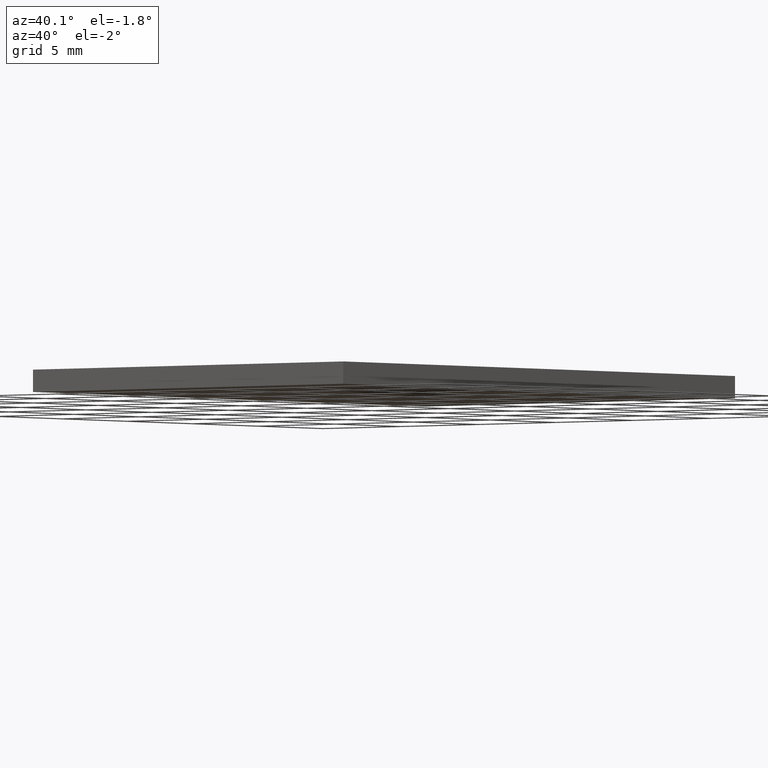
[diagram: clean part render]
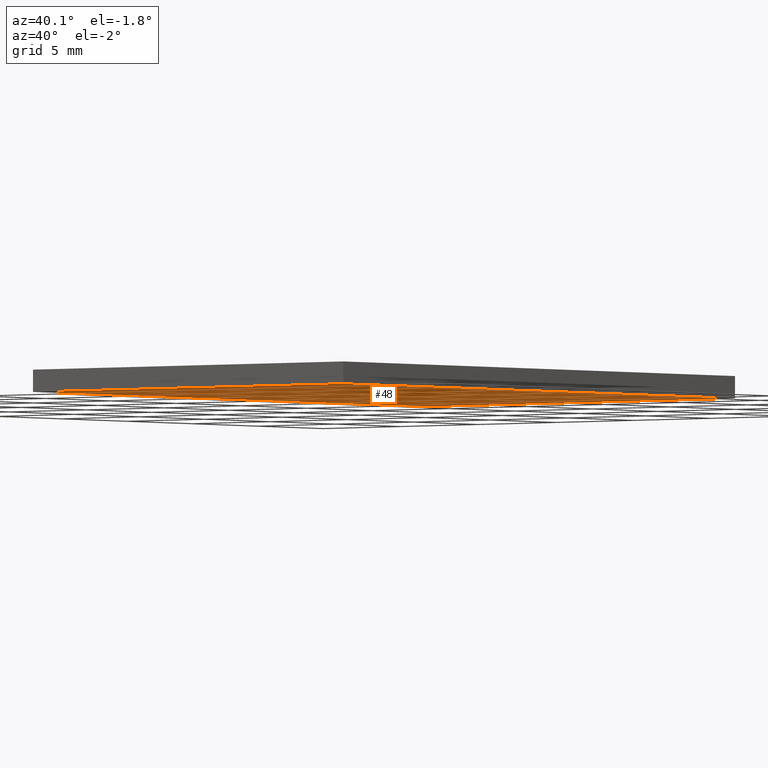
[diagram: same view with one face highlighted and labeled with its STEP entity id]
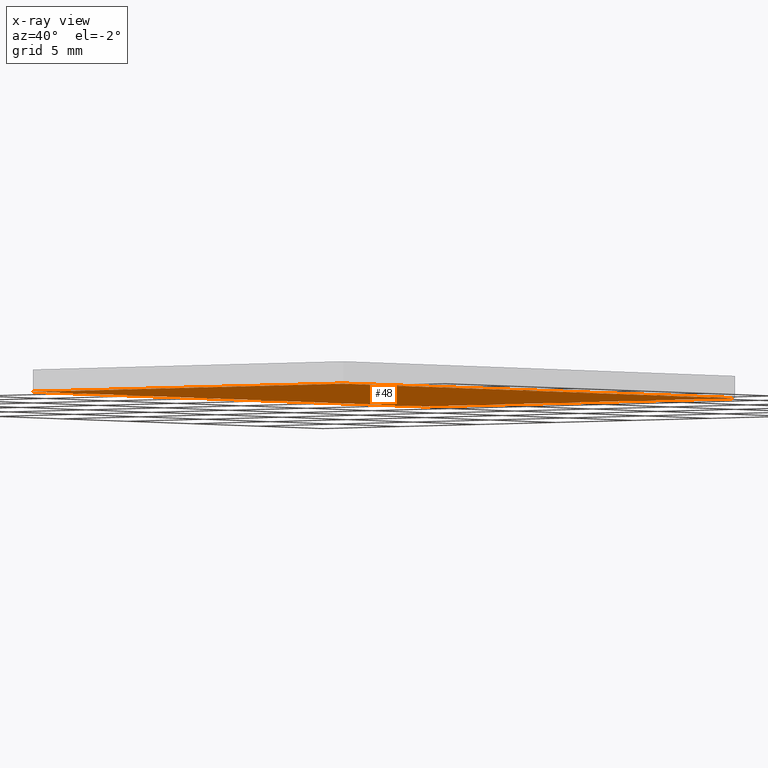
[diagram: x-ray of the same camera — body ghosted, the highlighted face saturated]
A machine part, auxiliary view. The second image highlights one B-rep face of the part: STEP entity #48.
The next image is the same camera in x-ray: the body ghosted, the highlighted face saturated — about 0% of this face is hidden behind the body in this view.
In plain terms, the highlighted planar face has unit normal (0, 0, -1).
Its self-contained STEP definition (entity closure, byte-faithful):
#3 = DIRECTION ( 'NONE',  ( -1.000000000000000000, 0.0000000000000000000, -0.0000000000000000000 ) ) ;
#5 = CARTESIAN_POINT ( 'NONE',  ( 0.0000000000000000000, 0.0000000000000000000, 0.0000000000000000000 ) ) ;
#13 = ORIENTED_EDGE ( 'NONE', *, *, #283, .F. ) ;
#17 = CARTESIAN_POINT ( 'NONE',  ( -10.00000000000000200, -14.99999999999999600, 0.0000000000000000000 ) ) ;
#21 = LINE ( 'NONE', #212, #308 ) ;
#29 = VECTOR ( 'NONE', #175, 1000.000000000000000 ) ;
#31 = ORIENTED_EDGE ( 'NONE', *, *, #242, .F. ) ;
#46 = EDGE_CURVE ( 'NONE', #159, #158, #256, .T. ) ;
#48 = ADVANCED_FACE ( 'NONE', ( #141 ), #126, .T. ) ;
#84 = DIRECTION ( 'NONE',  ( 0.0000000000000000000, 1.000000000000000000, 0.0000000000000000000 ) ) ;
#101 = CARTESIAN_POINT ( 'NONE',  ( 9.999999999999998200, 15.00000000000000400, 0.0000000000000000000 ) ) ;
#116 = AXIS2_PLACEMENT_3D ( 'NONE', #5, #299, #3 ) ;
#125 = VECTOR ( 'NONE', #84, 1000.000000000000000 ) ;
#126 = PLANE ( 'NONE',  #116 ) ;
#128 = CARTESIAN_POINT ( 'NONE',  ( -10.00000000000000200, 15.00000000000000400, 0.0000000000000000000 ) ) ;
#137 = DIRECTION ( 'NONE',  ( -0.0000000000000000000, -1.000000000000000000, -0.0000000000000000000 ) ) ;
#141 = FACE_OUTER_BOUND ( 'NONE', #291, .T. ) ;
#149 = CARTESIAN_POINT ( 'NONE',  ( -10.00000000000000200, -14.99999999999999600, 0.0000000000000000000 ) ) ;
#158 = VERTEX_POINT ( 'NONE', #277 ) ;
#159 = VERTEX_POINT ( 'NONE', #101 ) ;
#164 = VERTEX_POINT ( 'NONE', #248 ) ;
#175 = DIRECTION ( 'NONE',  ( -1.000000000000000000, -0.0000000000000000000, -0.0000000000000000000 ) ) ;
#181 = DIRECTION ( 'NONE',  ( 1.000000000000000000, 0.0000000000000000000, 0.0000000000000000000 ) ) ;
#188 = LINE ( 'NONE', #229, #125 ) ;
#208 = LINE ( 'NONE', #17, #238 ) ;
#212 = CARTESIAN_POINT ( 'NONE',  ( -10.00000000000000200, -14.99999999999999600, 0.0000000000000000000 ) ) ;
#229 = CARTESIAN_POINT ( 'NONE',  ( 9.999999999999998200, -14.99999999999999600, 0.0000000000000000000 ) ) ;
#238 = VECTOR ( 'NONE', #137, 1000.000000000000000 ) ;
#242 = EDGE_CURVE ( 'NONE', #158, #262, #208, .T. ) ;
#248 = CARTESIAN_POINT ( 'NONE',  ( 9.999999999999998200, -14.99999999999999600, 0.0000000000000000000 ) ) ;
#256 = LINE ( 'NONE', #128, #29 ) ;
#262 = VERTEX_POINT ( 'NONE', #149 ) ;
#277 = CARTESIAN_POINT ( 'NONE',  ( -10.00000000000000200, 15.00000000000000400, 0.0000000000000000000 ) ) ;
#283 = EDGE_CURVE ( 'NONE', #262, #164, #21, .T. ) ;
#286 = ORIENTED_EDGE ( 'NONE', *, *, #309, .F. ) ;
#287 = ORIENTED_EDGE ( 'NONE', *, *, #46, .F. ) ;
#291 = EDGE_LOOP ( 'NONE', ( #286, #13, #31, #287 ) ) ;
#299 = DIRECTION ( 'NONE',  ( 0.0000000000000000000, 0.0000000000000000000, -1.000000000000000000 ) ) ;
#308 = VECTOR ( 'NONE', #181, 1000.000000000000000 ) ;
#309 = EDGE_CURVE ( 'NONE', #164, #159, #188, .T. ) ;